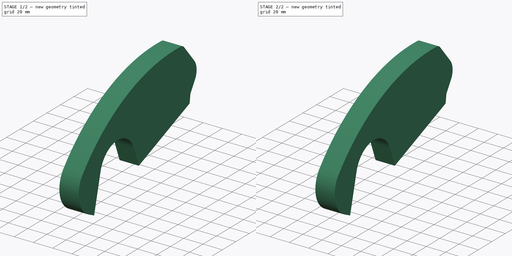
[diagram: build sequence overview — one tinted view per stage of 2, left to right]
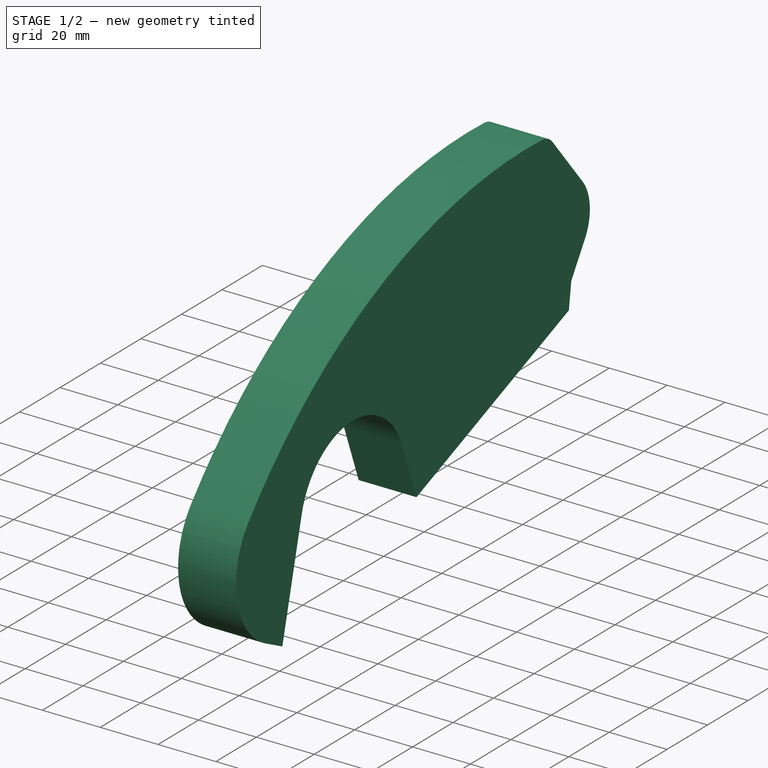
[diagram: stage 1 of 2 — iso view after this stage's code; geometry added in this stage tinted green]
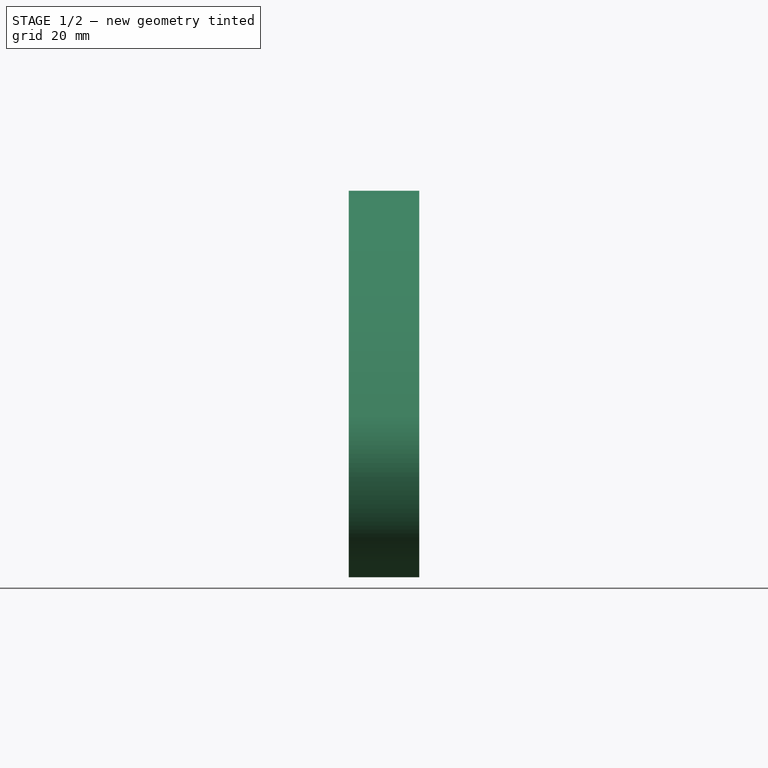
[diagram: stage 1 of 2 — front view after this stage's code; geometry added in this stage tinted green]
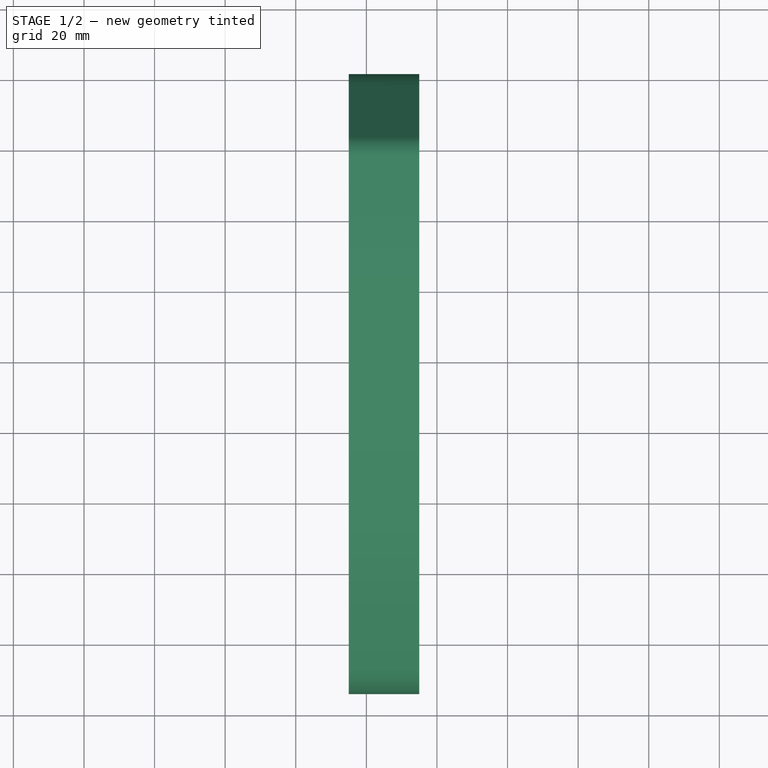
[diagram: stage 1 of 2 — top view after this stage's code; geometry added in this stage tinted green]
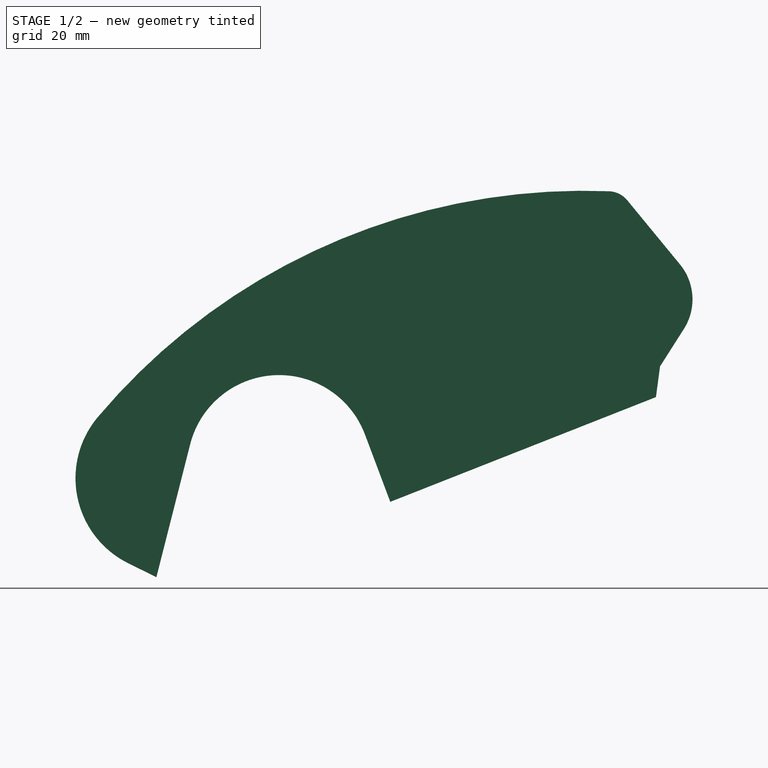
[diagram: stage 1 of 2 — right view after this stage's code; geometry added in this stage tinted green]
FCSTD DOCUMENT  (FreeCAD 2021.0202R23662 +3181 (Git))
Label: tinytrax_01
License: All rights reserved
LicenseURL: http://en.wikipedia.org/wiki/All_rights_reserved
objects: Sketcher::SketchObject×4, PartDesign::Body×2, Image::ImagePlane×1, PartDesign::Plane×1, PartDesign::ShapeBinder×1, PartDesign::Pad×1, PartDesign::Pocket×1, Spreadsheet::Sheet×1
note: 14 computed .brp shape members not serialized (recipe doc carries the construction recipe); baked Part::Feature solids carry a one-line shape summary decoded from their .brp

FEATURE [Image::ImagePlane] ImagePlane
  Placement = pos=(0,0,136) rot=(0.57735,0.57735,0.57735;2.0944rad)
  XSize = 452
  YSize = 339
FEATURE [Sketcher::SketchObject] Sketch  label="SketchMaster_old"
  FullyConstrained = false
  MapMode = 5
  Placement = pos=(0,0,0) rot=(0.57735,0.57735,0.57735;2.0944rad)
  Support = -> [YZ_Plane]
  sketch-geometry (42):
    g0: LineSegment StartX=-91.4719 StartY=-106.058 StartZ=0 EndX=-81.893 EndY=-68.3777 EndZ=0
    g1: ArcOfCircle CenterX=-56.7019 CenterY=-74.7816 CenterZ=0 NormalX=0 NormalY=0 NormalZ=1 AngleXU=0 Radius=25.9923 StartAngle=0.359524 EndAngle=2.89265
    g2: LineSegment StartX=-32.3715 StartY=-65.6368 StartZ=0 EndX=-25.2056 EndY=-84.702 EndZ=0
    g3: LineSegment StartX=-25.2056 StartY=-84.702 StartZ=0 EndX=50.0546 EndY=-55.0334 EndZ=0
    g4: LineSegment StartX=50.0546 StartY=-55.0334 StartZ=0 EndX=51.2252 EndY=-46.3238 EndZ=0
    g5: LineSegment StartX=51.2252 StartY=-46.3238 StartZ=0 EndX=57.9737 EndY=-35.7225 EndZ=0
    g6: ArcOfCircle CenterX=44.8078 CenterY=-27.3415 CenterZ=0 NormalX=0 NormalY=0 NormalZ=1 AngleXU=0 Radius=15.607 StartAngle=5.71631 EndAngle=6.97122
    g7: LineSegment StartX=56.8642 StartY=-17.4308 StartZ=0 EndX=41.9416 EndY=0.722451 EndZ=0
    g8: LineSegment StartX=-91.4719 StartY=-106.058 StartZ=0 EndX=-99.4397 EndY=-102.108 EndZ=0
    g9: ArcOfCircle CenterX=-87.4942 CenterY=-78.0149 CenterZ=0 NormalX=0 NormalY=0 NormalZ=1 AngleXU=0 Radius=26.8916 StartAngle=2.44221 EndAngle=4.2521
    g10: ArcOfCircle CenterX=29.6851 CenterY=-176.59 CenterZ=0 NormalX=0 NormalY=0 NormalZ=1 AngleXU=0 Radius=180.019 StartAngle=1.5314 EndAngle=2.44221
    g11: ArcOfCircle CenterX=36.4972 CenterY=-3.75306 CenterZ=0 NormalX=0 NormalY=0 NormalZ=1 AngleXU=0 Radius=7.04784 StartAngle=0.688032 EndAngle=1.5314
    g12: GeomPoint [constr] X=-57.8058 Y=-96.8582 Z=0
    g13: Circle CenterX=-57.8058 CenterY=-96.8582 CenterZ=0 NormalX=0 NormalY=0 NormalZ=1 AngleXU=0 Radius=47.6507
    g14: GeomPoint [constr] X=-126.122 Y=-101.169 Z=0
    g15: Circle CenterX=-126.122 CenterY=-101.169 CenterZ=0 NormalX=0 NormalY=0 NormalZ=1 AngleXU=0 Radius=13.34
    g16: LineSegment StartX=44.565 StartY=122.778 StartZ=0 EndX=43.2647 EndY=127.706 EndZ=0
    g17: LineSegment StartX=43.2647 StartY=127.706 StartZ=0 EndX=59.9013 EndY=209.594 EndZ=0
    g18: LineSegment StartX=59.9013 StartY=209.594 StartZ=0 EndX=57.8026 EndY=209.818 EndZ=0
    g19: LineSegment StartX=57.8026 StartY=209.818 StartZ=0 EndX=61.7869 EndY=233.333 EndZ=0
    g20: LineSegment StartX=61.7869 StartY=233.333 StartZ=0 EndX=70.927 EndY=232.392 EndZ=0
    g21: LineSegment StartX=70.927 StartY=232.392 StartZ=0 EndX=70.927 EndY=164.771 EndZ=0
    g22: LineSegment StartX=70.927 StartY=164.771 StartZ=0 EndX=64.9065 EndY=127.863 EndZ=0
    g23: LineSegment StartX=64.9065 StartY=127.863 StartZ=0 EndX=50.2487 EndY=119.487 EndZ=0
    g24: LineSegment StartX=50.2487 StartY=119.487 StartZ=0 EndX=44.565 EndY=122.778 EndZ=0
    g25: LineSegment StartX=42.4829 StartY=-45.8974 StartZ=0 EndX=76.9463 EndY=-45.8974 EndZ=0
    g26: LineSegment StartX=76.9463 StartY=-45.8974 StartZ=0 EndX=76.9463 EndY=-56.2733 EndZ=0
    g27: LineSegment StartX=76.9463 StartY=-56.2733 StartZ=0 EndX=42.3027 EndY=-56.2733 EndZ=0
    g28: LineSegment StartX=71.3598 StartY=-59.886 StartZ=0 EndX=82.5329 EndY=-59.886 EndZ=0
    g29: LineSegment StartX=71.3598 StartY=-59.886 StartZ=0 EndX=71.3598 EndY=-62.1009 EndZ=0
    g30: LineSegment StartX=71.3598 StartY=-62.1009 StartZ=0 EndX=82.5329 EndY=-62.1009 EndZ=0
    g31: LineSegment StartX=82.5329 StartY=-62.1009 StartZ=0 EndX=82.5329 EndY=-59.886 EndZ=0
    g32: Circle [constr] CenterX=76.9463 CenterY=-59.886 CenterZ=0 NormalX=0 NormalY=0 NormalZ=1 AngleXU=0 Radius=5.58657
    g33: LineSegment [constr] StartX=76.9463 StartY=-56.2733 StartZ=0 EndX=76.9463 EndY=-59.886 EndZ=0
    g34: LineSegment StartX=71.3598 StartY=-62.1009 StartZ=0 EndX=68.8377 EndY=-65.4726 EndZ=0
    g35: LineSegment StartX=68.8377 StartY=-65.4726 StartZ=0 EndX=81.7293 EndY=-116.536 EndZ=0
    g36: LineSegment StartX=87.5152 StartY=-115.605 StartZ=0 EndX=83.9038 EndY=-65.4726 EndZ=0
    g37: LineSegment StartX=82.5329 StartY=-62.1009 StartZ=0 EndX=83.9038 EndY=-65.4726 EndZ=0
    g38: ArcOfCircle CenterX=84.5813 CenterY=-115.816 CenterZ=0 NormalX=0 NormalY=0 NormalZ=1 AngleXU=0 Radius=2.9415 StartAngle=3.38889 EndAngle=6.3551
    g39: LineSegment StartX=68.8377 StartY=-65.4726 StartZ=0 EndX=83.9038 EndY=-65.4726 EndZ=0
    g40: Circle CenterX=84.5813 CenterY=-115.816 CenterZ=0 NormalX=0 NormalY=0 NormalZ=1 AngleXU=0 Radius=28.6928
    g41: LineSegment [constr] StartX=-172.679 StartY=-144.509 StartZ=0 EndX=156.973 EndY=-144.509 EndZ=0
  constraints (66):
    c: Coincident(g1,g0)
    c: Tangent(g1,g2) = 1.5708
    c: Coincident(g2,g3)
    c: Coincident(g3,g4)
    c: Coincident(g4,g5)
    c: Coincident(g6,g5)
    c: Coincident(g7,g6)
    c: Coincident(g8,g0)
    c: Coincident(g9,g8)
    c: Coincident(g10,g9)
    c: Coincident(g11,g10)
    c: Coincident(g11,g7)
    c: Coincident(g13,g12)
    c: Tangent(g1,g0)
    c: Tangent(g8,g9)
    c: Tangent(g9,g10)
    c: Tangent(g11,g10)
    c: Tangent(g11,g7)
    c: Tangent(g7,g6)
    c: Tangent(g6,g5)
    c: Coincident(g15,g14)
    c: Coincident(g16,g17)
    c: Coincident(g17,g18)
    c: Coincident(g18,g19)
    c: Coincident(g19,g20)
    c: Coincident(g20,g21)
    c: Vertical(g21)
    c: Coincident(g21,g22)
    c: Coincident(g22,g23)
    c: Coincident(g23,g24)
    c: Coincident(g24,g16)
    c: Horizontal(g25)
    c: Coincident(g26,g25)
    c: Vertical(g26)
    c: Coincident(g27,g26)
    c: Horizontal(g27)
    c: Horizontal(g28)
    c: Coincident(g29,g28)
    c: Coincident(g30,g29)
    c: Horizontal(g30)
    c: Coincident(g31,g30)
    c: Coincident(g31,g28)
    c: Vertical(g29)
    c: Vertical(g31)
    c: PointOnObject(g28,g32)
    c: PointOnObject(g28,g32)
    c: PointOnObject(g32,g28)
    c: Coincident(g33,g26)
    c: Coincident(g33,g32)
    c: Vertical(g33)
    c: Coincident(g34,g29)
    c: Coincident(g35,g34)
    c: Coincident(g37,g30)
    c: Coincident(g37,g36)
    c: Coincident(g38,g35)
    c: Coincident(g38,g36)
    c: Tangent(g35,g38)
    c: Tangent(g38,g36)
    c: Coincident(g39,g34)
    c: Coincident(g39,g36)
    c: Horizontal(g39)
    c: Tangent(g39,g32)
    c: Coincident(g40,g38)
    c: Horizontal(g41)
    c: Tangent(g13,g41)
    c: Tangent(g40,g41)
FEATURE [PartDesign::Plane] DatumPlane
  AttachmentOffset = pos=(0,0,155) rot=(0,0,1;0rad)
  Length = 10
  MapMode = 5
  MinimumLength = 10
  MinimumWidth = 10
  Placement = pos=(155,-3.44e-14,3.44e-14) rot=(0.57735,0.57735,0.57735;2.0944rad)
  ResizeMode = 0
  Support = -> [YZ_Plane]
  Width = 10
  expr: .AttachmentOffset.Base.z = Spreadsheet.Seat_width / 2
FEATURE [PartDesign::ShapeBinder] ShapeBinder
  Placement = pos=(0,0,0) rot=(0.57735,0.57735,0.57735;2.0944rad)
  Support = -> [Sketch]
  TraceSupport = false
FEATURE [Sketcher::SketchObject] Sketch001
  ExternalGeometry = -> [ShapeBinder]
  FullyConstrained = true
  MapMode = 5
  Placement = pos=(155,-3.44e-14,3.44e-14) rot=(0.57735,0.57735,0.57735;2.0944rad)
  Support = -> [DatumPlane]
FEATURE [PartDesign::Pad] Pad
  ClaimChildren = false
  Direction = (1,1,1)
  Fit = 0
  FitJoin = 0
  InnerFit = 0
  InnerFitJoin = 0
  InnerTaperAngle = 0
  InnerTaperAngleRev = 0
  Length = 20
  Length2 = 100
  NewSolid = false
  Placement = pos=(155,-3.44e-14,3.44e-14) rot=(0.57735,0.57735,0.57735;2.0944rad)
  Profile = -> Sketch001
  Suppress = false
  Type = 0
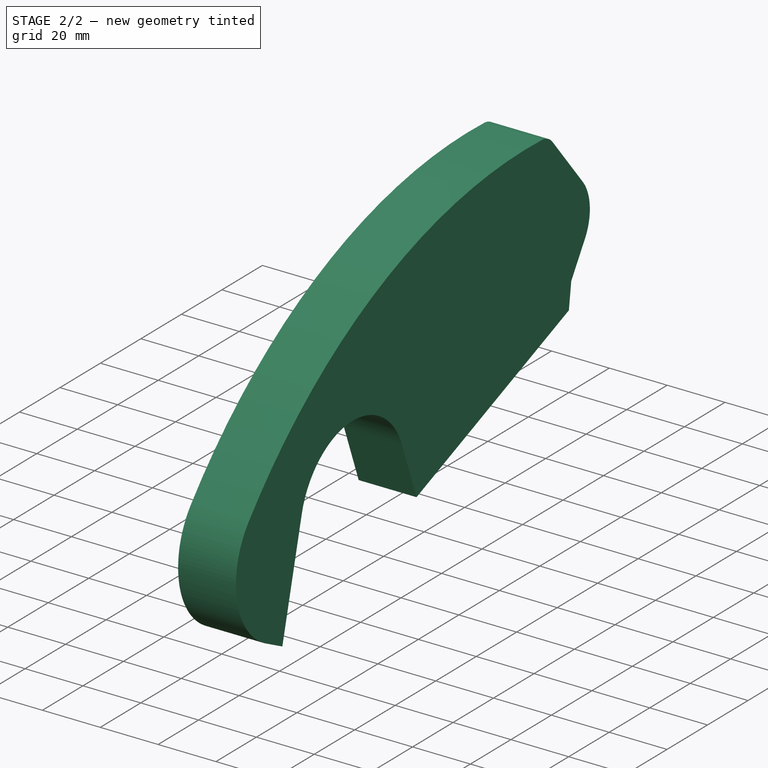
[diagram: stage 2 of 2 — iso view after this stage's code; geometry added in this stage tinted green]
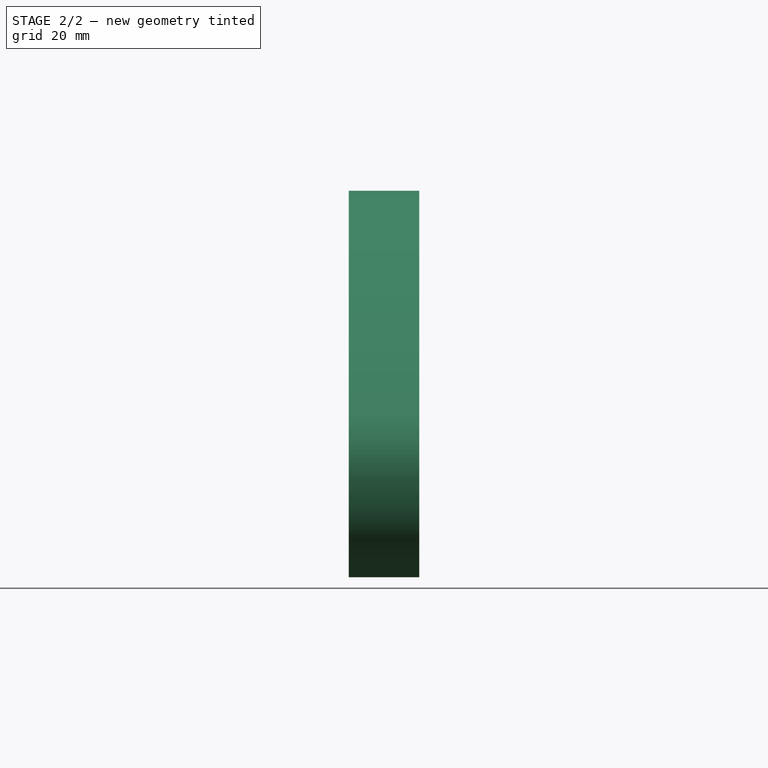
[diagram: stage 2 of 2 — front view after this stage's code; geometry added in this stage tinted green]
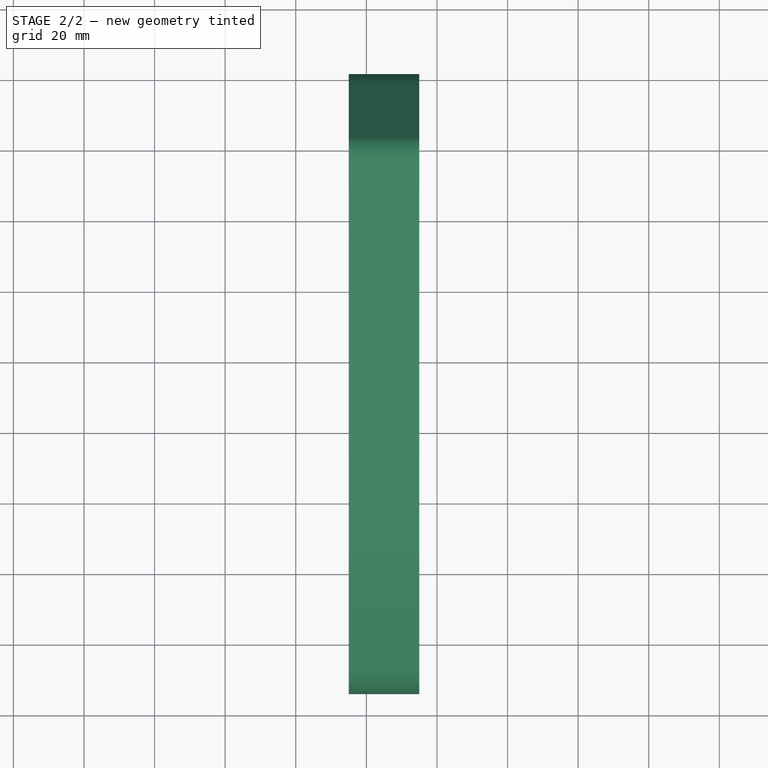
[diagram: stage 2 of 2 — top view after this stage's code; geometry added in this stage tinted green]
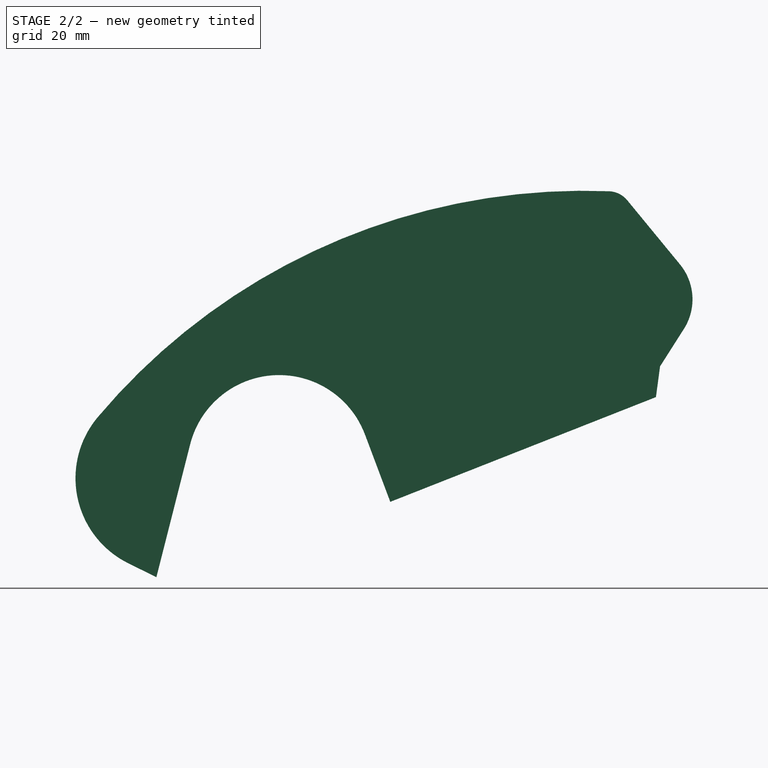
[diagram: stage 2 of 2 — right view after this stage's code; geometry added in this stage tinted green]
FEATURE [Sketcher::SketchObject] Sketch002
  FullyConstrained = false
  MapMode = 5
  Support = -> [XY_Plane001]
  sketch-geometry (8):
    g0: ArcOfCircle CenterX=14.2331 CenterY=-94.5982 CenterZ=0 NormalX=0 NormalY=0 NormalZ=1 AngleXU=0 Radius=26.1286 StartAngle=5.36877 EndAngle=6.15025
    g1: LineSegment StartX=27.291 StartY=61.6709 StartZ=0 EndX=27.291 EndY=30.8398 EndZ=0
    g2: ArcOfCircle CenterX=62.1932 CenterY=30.8398 CenterZ=0 NormalX=0 NormalY=0 NormalZ=1 AngleXU=0 Radius=34.9022 StartAngle=3.14159 EndAngle=3.73963
    g3: ArcOfCircle CenterX=1.05102 CenterY=-10.8138 CenterZ=0 NormalX=0 NormalY=0 NormalZ=1 AngleXU=0 Radius=39.0802 StartAngle=2.49448e-09 EndAngle=0.598036
    g4: LineSegment StartX=40.1312 StartY=-10.8138 StartZ=0 EndX=40.1312 EndY=-98.0614 EndZ=0
    g5: LineSegment StartX=30.1781 StartY=-115.297 StartZ=0 EndX=60.3132 EndY=-115.297 EndZ=0
    g6: LineSegment StartX=60.3132 StartY=-115.297 StartZ=0 EndX=60.3132 EndY=61.489 EndZ=0
    g7: LineSegment StartX=60.3132 StartY=61.489 StartZ=0 EndX=27.291 EndY=61.6709 EndZ=0
  constraints (15):
    c: Vertical(g1)
    c: Coincident(g2,g1)
    c: Coincident(g3,g2)
    c: Coincident(g4,g3)
    c: Vertical(g4)
    c: Coincident(g4,g0)
    c: Coincident(g5,g0)
    c: Horizontal(g5)
    c: Coincident(g6,g5)
    c: Vertical(g6)
    c: Coincident(g7,g6)
    c: Coincident(g7,g1)
    c: Tangent(g3,g4)
    c: Tangent(g3,g2)
    c: Tangent(g2,g1)
FEATURE [PartDesign::Pocket] Pocket
  BaseFeature = -> Pad
  ClaimChildren = false
  Fit = 0
  FitJoin = 0
  InnerFit = 0
  InnerFitJoin = 0
  InnerTaperAngle = 0
  InnerTaperAngleRev = 0
  Length = 200
  Length2 = 100
  Midplane = true
  NewSolid = false
  Placement = pos=(155,-3.44e-14,3.44e-14) rot=(0.57735,0.57735,0.57735;2.0944rad)
  Profile = -> Sketch002
  Suppress = false
  Type = 1
FEATURE [PartDesign::Body] Body001
  AutoGroupSolids = false
  ExportMode = 0
  Group = -> [Sketch001,ShapeBinder,Pad,Sketch002,Pocket]
  Origin = -> Origin001
  Tip = -> Pocket
  _ExportChildren = -> [ShapeBinder,Pad,Pocket]
  _GroupVersion = 1
FEATURE [Spreadsheet::Sheet] Spreadsheet
  PythonMode = false
  cells = A1=TinyTrax_width; B1(TinyTrax_width)==600mm; A2==Sides_offset; B2(Sides_offset)==400mm; A3=Seat_width; B3(Seat_width)==310mm
FEATURE [Sketcher::SketchObject] Sketch003
  FullyConstrained = false
  MapMode = 5
  Placement = pos=(0,0,0) rot=(0.57735,0.57735,0.57735;2.0944rad)
  Support = -> [YZ_Plane]
  sketch-geometry (14):
    g0: Circle CenterX=0 CenterY=200 CenterZ=0 NormalX=0 NormalY=0 NormalZ=1 AngleXU=0 Radius=200
    g1: Circle CenterX=643.831 CenterY=100 CenterZ=0 NormalX=0 NormalY=0 NormalZ=1 AngleXU=0 Radius=100
    g2: LineSegment StartX=-91.5018 StartY=34.2878 StartZ=0 EndX=-79.9326 EndY=70.7804 EndZ=0
    g3: LineSegment StartX=-31.6244 StartY=71.6363 StartZ=0 EndX=-23.9912 EndY=50.2234 EndZ=0
    g4: LineSegment StartX=-23.9912 StartY=50.2234 StartZ=0 EndX=50.1827 EndY=82.2584 EndZ=0
    g5: LineSegment StartX=50.1827 StartY=82.2584 StartZ=0 EndX=51.3001 EndY=88.9461 EndZ=0
    g6: LineSegment StartX=51.3001 StartY=88.9461 StartZ=0 EndX=62.453 EndY=107.178 EndZ=0
    g7: LineSegment StartX=62.453 StartY=107.178 StartZ=0 EndX=43.2657 EndY=138.594 EndZ=0
    g8: ArcOfCircle CenterX=-84.4987 CenterY=60.0413 CenterZ=0 NormalX=0 NormalY=0 NormalZ=1 AngleXU=0 Radius=30.6831 StartAngle=2.34517 EndAngle=4.11832
    g9: ArcOfCircle CenterX=33.4842 CenterY=-60.5731 CenterZ=0 NormalX=0 NormalY=0 NormalZ=1 AngleXU=0 Radius=199.407 StartAngle=1.52172 EndAngle=2.34517
    g10: ArcOfCircle CenterX=-55.6345 CenterY=63.0773 CenterZ=0 NormalX=0 NormalY=0 NormalZ=1 AngleXU=0 Radius=25.49 StartAngle=0.342434 EndAngle=2.83459
    g11: LineSegment [constr] StartX=-55.6345 StartY=63.0773 StartZ=0 EndX=-55.6345 EndY=23.6031 EndZ=0
    g12: LineSegment StartX=-101.673 StartY=34.6151 StartZ=0 EndX=-91.5018 EndY=34.2878 EndZ=0
    g13: LineSegment StartX=-23.9912 StartY=50.2234 StartZ=0 EndX=-91.5018 EndY=34.2878 EndZ=0
  constraints (29):
    c: Tangent(g0,g-1)
    c: Tangent(g1,g-1)
    c: DistanceX(g0,g1) = 643.831
    c: Diameter(g0) = 400
    c: Diameter(g1) = 200
    c: PointOnObject(g0,g-2)
    c: Coincident(g3,g4)
    c: Coincident(g4,g5)
    c: Coincident(g5,g6)
    c: Coincident(g6,g7)
    c: Coincident(g9,g8)
    c: Coincident(g9,g7)
    c: Coincident(g10,g2)
    c: Coincident(g11,g10)
    c: Vertical(g11)
    c: Tangent(g10,g2)
    c: Tangent(g10,g3)
    c: Coincident(g3,g10)
    c: Tangent(g9,g8)
    c: Angle(g5,g6) = 2.75814
    c: Angle(g7,g6) = 2.0443
    c: Coincident(g12,g8)
    c: Coincident(g12,g2)
    c: Angle(g2,g11) = 0.307003
    c: Angle(g11,g3) = 0.342434
    c: Radius(g10) = 25.49
    c: Coincident(g13,g3)
    c: Coincident(g13,g2)
    c: Distance(g13) = 69.3659
FEATURE [PartDesign::Body] Body  label="Master"
  AutoGroupSolids = false
  ExportMode = 0
  Group = -> [Sketch,DatumPlane,Sketch003]
  Origin = -> Origin
  _ExportChildren = -> [Sketch,DatumPlane,Sketch003]
  _GroupVersion = 1
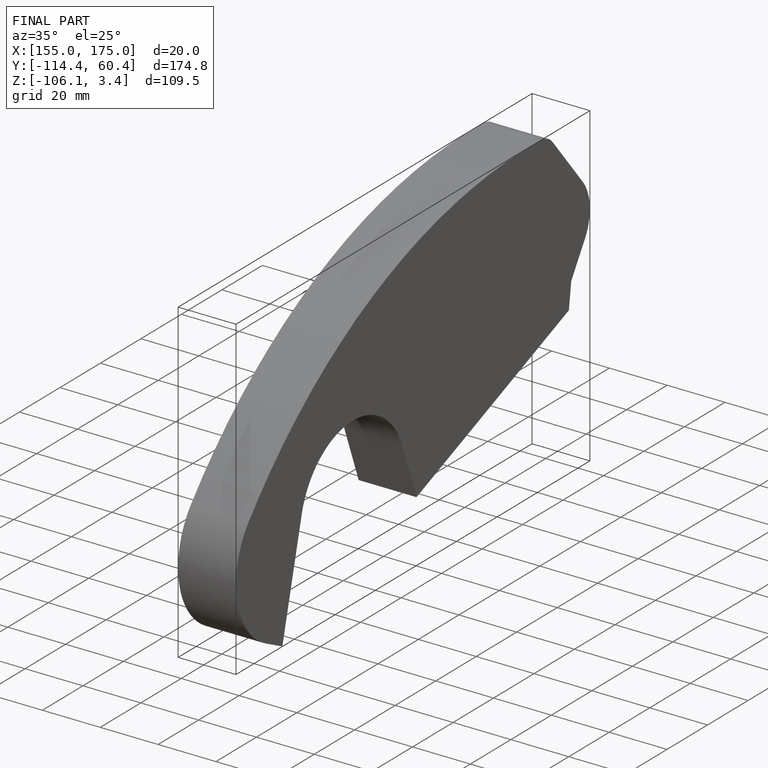
[diagram: finished part — iso view with bounding-box wireframe]
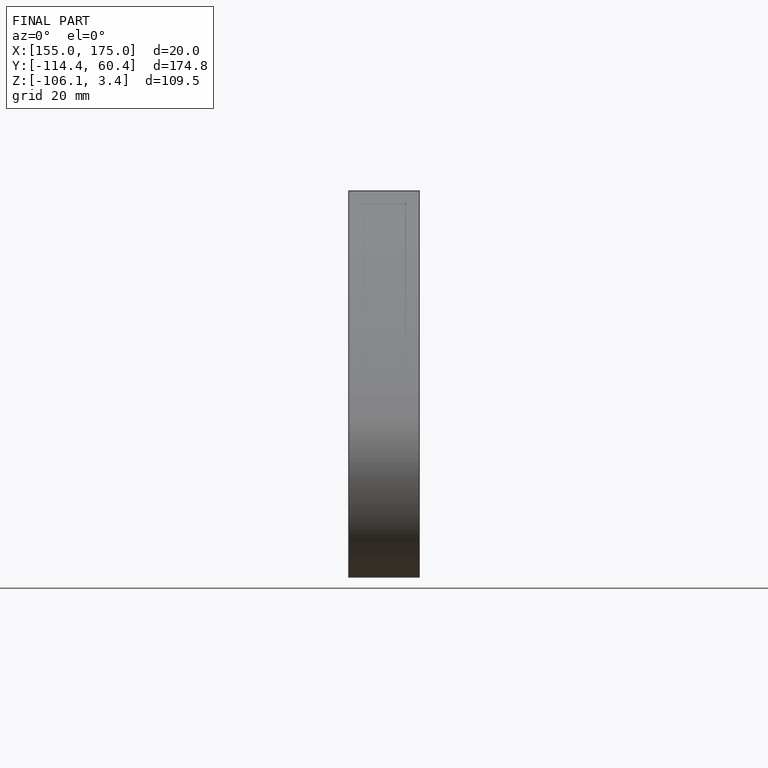
[diagram: finished part — front view with bounding-box wireframe]
